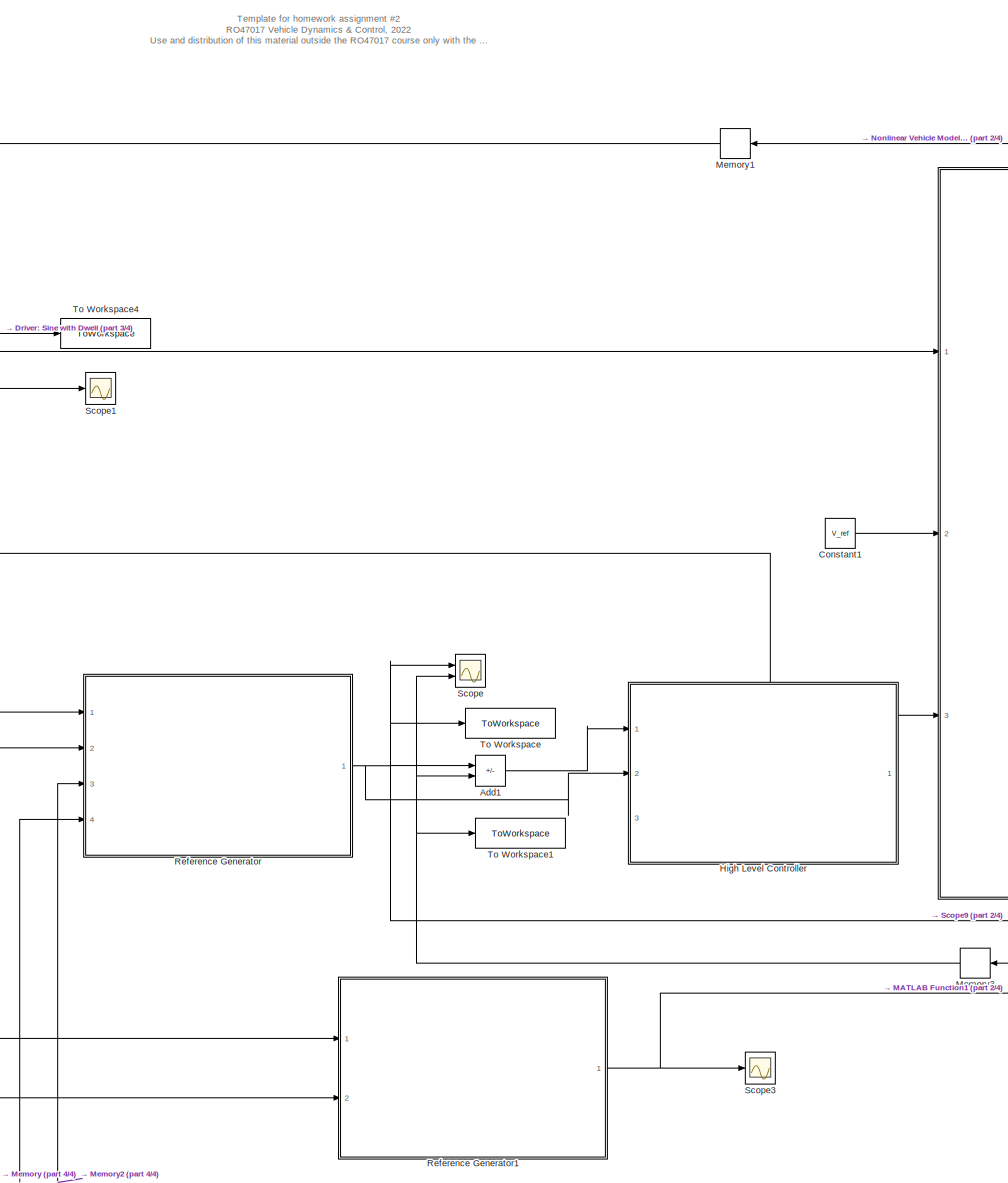
[diagram: root canvas - part 1/4, center side, full height]
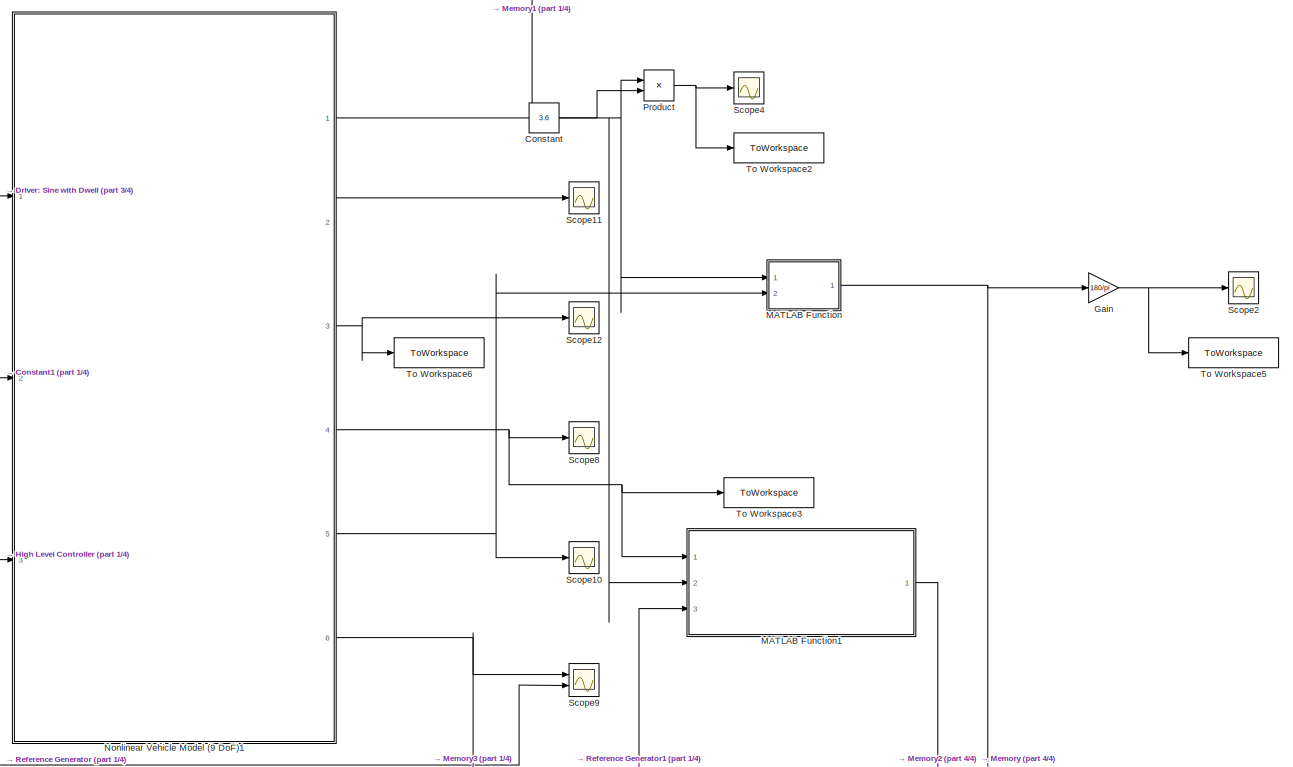
[diagram: root canvas - part 2/4, middle right region]
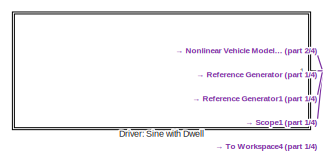
[diagram: root canvas - part 3/4, top left region]
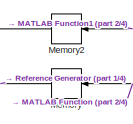
[diagram: root canvas - part 4/4, bottom center region]
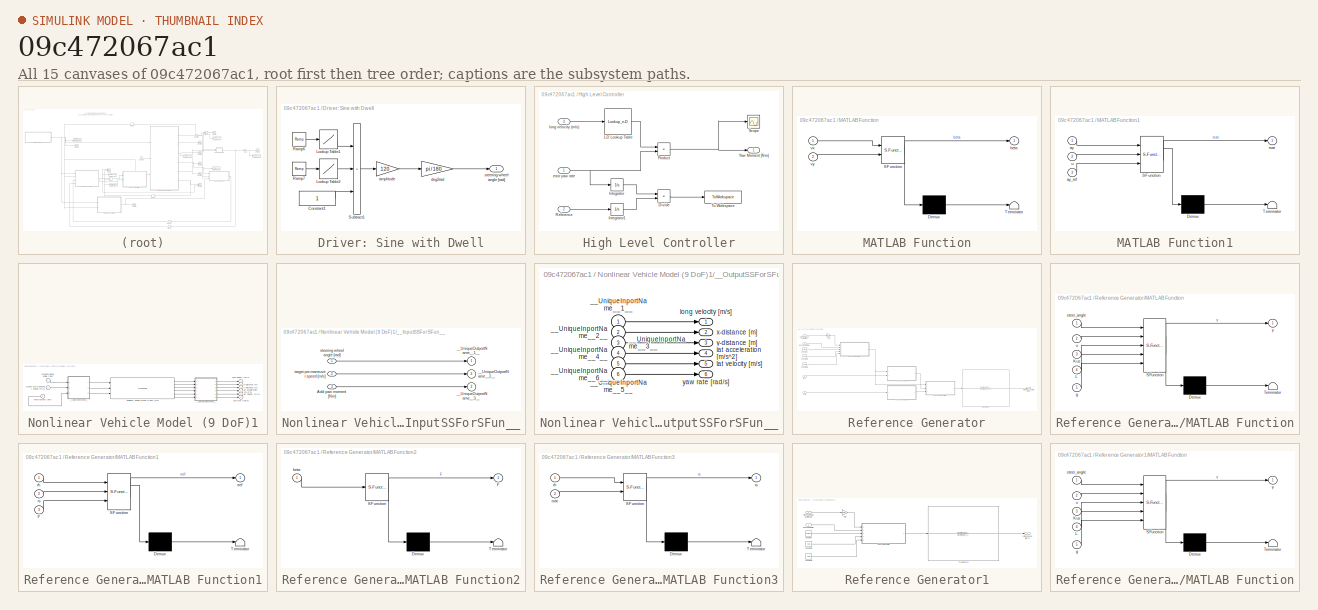
[diagram: thumbnail index - all 15 canvases of the model, root first then tree order]
MODEL slx_09c472067ac1
KIND model
CONFIG AbsTol = auto
CONFIG EnableMultiTasking = on
CONFIG FixedStep = 1e-3
CONFIG MaxStep = auto
CONFIG MinStep = auto
CONFIG RelTol = 1e-3
CONFIG SampleTimeConstraint = Unconstrained
CONFIG SolverName = ode4
CONFIG StartTime = 0.0
CONFIG StopTime = 20
BLOCK [Sum] Add1
  IconShape = rectangular
  Inputs = +-
  Ports = [2, 1]
BLOCK [Constant] Constant
  Value = 3.6
BLOCK [Constant] Constant1
  Value = V_ref
BLOCK [SubSystem] Driver: Sine with Dwell
  Ports = [0, 1]
  RequestExecContextInheritance = off
BLOCK [Constant] Driver: Sine with Dwell/Constant1
BLOCK [Lookup] Driver: Sine with Dwell/Lookup Table1
  InputValues = [0:0.1:3*pi/2 3*pi/2+eps]*0.7
  LookUpMeth = Interpolation-Use End Values
  SaturateOnIntegerOverflow = off
  Table = sin([0:0.1:3*pi/2 3*pi/2+eps])
BLOCK [Lookup] Driver: Sine with Dwell/Lookup Table2
  InputValues = [3*pi/2:0.1:2*pi 2*pi+eps]*0.7
  LookUpMeth = Interpolation-Use End Values
  SaturateOnIntegerOverflow = off
  Table = sin([3*pi/2:0.1:2*pi 2*pi+eps])
BLOCK [Reference] Driver: Sine with Dwell/Ramp6  REF=simulink/Sources/Ramp
  Ports = [0, 1]
  SourceBlock = simulink/Sources/Ramp
  SourceProductBaseCode = SL
  SourceType = Ramp
BLOCK [Reference] Driver: Sine with Dwell/Ramp7  REF=simulink/Sources/Ramp
  Ports = [0, 1]
  SourceBlock = simulink/Sources/Ramp
  SourceProductBaseCode = SL
  SourceType = Ramp
BLOCK [Sum] Driver: Sine with Dwell/Subtract1
  IconShape = rectangular
  Inputs = +++
  Ports = [3, 1]
BLOCK [Gain] Driver: Sine with Dwell/amplitude
  Gain = 120
BLOCK [Gain] Driver: Sine with Dwell/deg2rad
  Gain = pi / 180
BLOCK [Outport] Driver: Sine with Dwell/steering wheel angle [rad]
  VectorParamsAs1DForOutWhenUnconnected = off
BLOCK [Gain] Gain
  Gain = 180/pi
BLOCK [SubSystem] High Level Controller
  PortSchema = {"entries":[{"content":{"sides":[{"content":{"connectorIds":["In1","In2"]},"type":"ConnectorPlacement.EquallySpacedRectSide","uuid":"b384b34b-9bc0-4dc4-b497-a1a499aa981c"},{"content":{"connectorIds":["Out1"],"side":"RIGHT"},"type":"ConnectorPlacement.EquallySpacedRectSide","uuid":"f3fdbba3-f0c8-4c56-b5d3-57c2637e329a"},{"content":{"connectorIds":["In3"],"side":"TOP"},"type":"ConnectorPlacement.Equ...<+251ch>
  Ports = [3, 1]
  RequestExecContextInheritance = off
BLOCK [Lookup_n-D] High Level Controller/1-D Lookup Table
  BreakpointsForDimension1 = LQR_Vx_ref
  InputPortMap = u0
  InternalRulePriority = Speed
  NumberOfTableDimensions = 1
  Ports = [1, 1]
  RndMeth = Simplest
  Table = LQR_K(2,:)
BLOCK [Product] High Level Controller/Divide
  Inputs = */
  Ports = [2, 1]
BLOCK [Integrator] High Level Controller/Integrator
  Ports = [1, 1]
BLOCK [Integrator] High Level Controller/Integrator1
  Ports = [1, 1]
BLOCK [Product] High Level Controller/Product
  Ports = [2, 1]
BLOCK [Inport] High Level Controller/Reference
  Port = 2
BLOCK [Scope] High Level Controller/Scope
  Floating = off
  NumInputPorts = 1
  Ports = [1]
  ScopeSpecificationString = Simulink.scopes.TimeScopeBlockCfg('CurrentConfiguration', extmgr.ConfigurationSet(extmgr.Configuration('Core','General UI',true),extmgr.Configuration('Core','Source UI',true),extmgr.Configuration('Sources','WiredSimulink',true,'DataLoggingVariableName','ScopeData7'),extmgr.Configuration('Visuals','Time Domain',true,'SerializedDisplays',{struct('MinYLimReal','-15.12733','MaxYLimReal','13.16182','YL...<+1401ch>
BLOCK [ToWorkspace] High Level Controller/To Workspace
  FixptAsFi = on
  MaxDataPoints = inf
  Ports = [1]
  SampleTime = -1
  SaveFormat = Timeseries
  VariableName = yaw_velocity_metric_ref
BLOCK [Outport] High Level Controller/Yaw Moment [Nm]
  VectorParamsAs1DForOutWhenUnconnected = off
BLOCK [Inport] High Level Controller/error yaw rate
BLOCK [Inport] High Level Controller/long velocity (m//s)
  Port = 3
BLOCK [SubSystem] MATLAB Function
  ErrorFcn = Stateflow.Translate.translate
  PermitHierarchicalResolution = ExplicitOnly
  Ports = [2, 1]
  RequestExecContextInheritance = off
  SFBlockType = MATLAB Function
  TreatAsAtomicUnit = on
BLOCK [Demux] MATLAB Function/ Demux 
  Outputs = 1
  Ports = [1, 1]
BLOCK [S-Function] MATLAB Function/ SFunction 
  EnableBusSupport = on
  FunctionName = sf_sfun
  PortCounts = [2 2]
  Ports = [2, 2]
  SFcnIsStateOwnerBlock = off
  SFunctionDeploymentMode = off
  Tag = Stateflow S-Function 2
BLOCK [Terminator] MATLAB Function/ Terminator 
BLOCK [Outport] MATLAB Function/beta
BLOCK [Inport] MATLAB Function/vx
BLOCK [Inport] MATLAB Function/vy
  Port = 2
BLOCK [SubSystem] MATLAB Function1
  ErrorFcn = Stateflow.Translate.translate
  PermitHierarchicalResolution = ExplicitOnly
  Ports = [3, 1]
  RequestExecContextInheritance = off
  SFBlockType = MATLAB Function
  TreatAsAtomicUnit = on
BLOCK [Demux] MATLAB Function1/ Demux 
  Outputs = 1
  Ports = [1, 1]
BLOCK [S-Function] MATLAB Function1/ SFunction 
  EnableBusSupport = on
  FunctionName = sf_sfun
  PortCounts = [3 2]
  Ports = [3, 2]
  SFcnIsStateOwnerBlock = off
  SFunctionDeploymentMode = off
  Tag = Stateflow S-Function 3
BLOCK [Terminator] MATLAB Function1/ Terminator 
BLOCK [Inport] MATLAB Function1/ay
BLOCK [Inport] MATLAB Function1/ay_ref
  Port = 3
BLOCK [Outport] MATLAB Function1/rsat
BLOCK [Inport] MATLAB Function1/u
  Port = 2
BLOCK [Memory] Memory
BLOCK [Memory] Memory1
BLOCK [Memory] Memory2
BLOCK [Memory] Memory3
BLOCK [SubSystem] Nonlinear Vehicle Model (9 DoF)1
  Ports = [3, 6]
  RequestExecContextInheritance = off
BLOCK [S-Function] Nonlinear Vehicle Model (9 DoF)1/Nonlinear Vehicle Model (9 DoF)_sfcn
  CopyFcn = if ~strcmp(get_param(gcb,'Linkstatus'),'none') && ...\n~strcmp(get_param(gcb,'Linkstatus'),'implicit')      \n  set_param(gcb,'LinkStatus','none');                \nend
  EnableBusSupport = off
  FunctionName = Nonlinear_sf
  Ports = [3, 6]
  SFcnIsStateOwnerBlock = off
  SFunctionDeploymentMode = off
BLOCK [Inport] Nonlinear Vehicle Model (9 DoF)1/Yaw moment [Nm]
  Port = 3
BLOCK [SubSystem] Nonlinear Vehicle Model (9 DoF)1/__InputSSForSFun__
  PermitHierarchicalResolution = ExplicitOnly
  Ports = [3, 3]
  RequestExecContextInheritance = off
BLOCK [Inport] Nonlinear Vehicle Model (9 DoF)1/__InputSSForSFun__/Add yaw moment [Nm]
  Port = 3
BLOCK [Outport] Nonlinear Vehicle Model (9 DoF)1/__InputSSForSFun__/__UniqueOutportName__1__
BLOCK [Outport] Nonlinear Vehicle Model (9 DoF)1/__InputSSForSFun__/__UniqueOutportName__2__
  Port = 2
BLOCK [Outport] Nonlinear Vehicle Model (9 DoF)1/__InputSSForSFun__/__UniqueOutportName__3__
  Port = 3
BLOCK [Inport] Nonlinear Vehicle Model (9 DoF)1/__InputSSForSFun__/steering wheel angle [rad]
BLOCK [Inport] Nonlinear Vehicle Model (9 DoF)1/__InputSSForSFun__/target pre-maneuver speed [m//s]
  Port = 2
BLOCK [SubSystem] Nonlinear Vehicle Model (9 DoF)1/__OutputSSForSFun__
  PermitHierarchicalResolution = ExplicitOnly
  Ports = [6, 6]
  RequestExecContextInheritance = off
BLOCK [Inport] Nonlinear Vehicle Model (9 DoF)1/__OutputSSForSFun__/__UniqueInportName__1__
BLOCK [Inport] Nonlinear Vehicle Model (9 DoF)1/__OutputSSForSFun__/__UniqueInportName__2__
  Port = 2
BLOCK [Inport] Nonlinear Vehicle Model (9 DoF)1/__OutputSSForSFun__/__UniqueInportName__3__
  Port = 3
BLOCK [Inport] Nonlinear Vehicle Model (9 DoF)1/__OutputSSForSFun__/__UniqueInportName__4__
  Port = 4
BLOCK [Inport] Nonlinear Vehicle Model (9 DoF)1/__OutputSSForSFun__/__UniqueInportName__5__
  Port = 5
BLOCK [Inport] Nonlinear Vehicle Model (9 DoF)1/__OutputSSForSFun__/__UniqueInportName__6__
  Port = 6
BLOCK [Outport] Nonlinear Vehicle Model (9 DoF)1/__OutputSSForSFun__/lat acceleration [m//s^2]
  Port = 4
  VectorParamsAs1DForOutWhenUnconnected = off
BLOCK [Outport] Nonlinear Vehicle Model (9 DoF)1/__OutputSSForSFun__/lat velocity [m//s]
  Port = 5
  VectorParamsAs1DForOutWhenUnconnected = off
BLOCK [Outport] Nonlinear Vehicle Model (9 DoF)1/__OutputSSForSFun__/long velocity [m//s]
  VectorParamsAs1DForOutWhenUnconnected = off
BLOCK [Outport] Nonlinear Vehicle Model (9 DoF)1/__OutputSSForSFun__/x-distance [m]
  Port = 2
  VectorParamsAs1DForOutWhenUnconnected = off
BLOCK [Outport] Nonlinear Vehicle Model (9 DoF)1/__OutputSSForSFun__/y-distance [m]
  Port = 3
  VectorParamsAs1DForOutWhenUnconnected = off
BLOCK [Outport] Nonlinear Vehicle Model (9 DoF)1/__OutputSSForSFun__/yaw rate [rad//s]
  Port = 6
  VectorParamsAs1DForOutWhenUnconnected = off
BLOCK [Outport] Nonlinear Vehicle Model (9 DoF)1/lat acceleration [m//s^2]
  Port = 4
  VectorParamsAs1DForOutWhenUnconnected = off
BLOCK [Outport] Nonlinear Vehicle Model (9 DoF)1/lat velocity [m//s]
  Port = 5
  VectorParamsAs1DForOutWhenUnconnected = off
BLOCK [Outport] Nonlinear Vehicle Model (9 DoF)1/long velocity [m//s]
  VectorParamsAs1DForOutWhenUnconnected = off
BLOCK [Inport] Nonlinear Vehicle Model (9 DoF)1/steering wheel angle [rad]
BLOCK [Inport] Nonlinear Vehicle Model (9 DoF)1/target pre-maneuver speed [m//s]
  Port = 2
BLOCK [Outport] Nonlinear Vehicle Model (9 DoF)1/x-distance [m]
  Port = 2
  VectorParamsAs1DForOutWhenUnconnected = off
BLOCK [Outport] Nonlinear Vehicle Model (9 DoF)1/y-distance [m]
  Port = 3
  VectorParamsAs1DForOutWhenUnconnected = off
BLOCK [Outport] Nonlinear Vehicle Model (9 DoF)1/yaw rate [rad//s]
  Port = 6
  VectorParamsAs1DForOutWhenUnconnected = off
BLOCK [Product] Product
  Ports = [2, 1]
BLOCK [SubSystem] Reference Generator
  Ports = [4, 1]
  RequestExecContextInheritance = off
BLOCK [Constant] Reference Generator/Constant
  Value = par.Kus
BLOCK [Constant] Reference Generator/Constant1
  Value = par.L
BLOCK [Constant] Reference Generator/Constant2
  Value = par.g
BLOCK [Gain] Reference Generator/Gain
  Gain = 1/par.i_steer
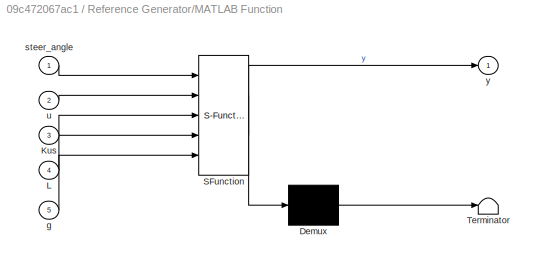
BLOCK [SubSystem] Reference Generator/MATLAB Function
  ErrorFcn = Stateflow.Translate.translate
  PermitHierarchicalResolution = ExplicitOnly
  Ports = [5, 1]
  RequestExecContextInheritance = off
  SFBlockType = MATLAB Function
  TreatAsAtomicUnit = on
BLOCK [Demux] Reference Generator/MATLAB Function/ Demux 
  Outputs = 1
  Ports = [1, 1]
BLOCK [S-Function] Reference Generator/MATLAB Function/ SFunction 
  EnableBusSupport = on
  FunctionName = sf_sfun
  PortCounts = [5 2]
  Ports = [5, 2]
  SFcnIsStateOwnerBlock = off
  SFunctionDeploymentMode = off
  Tag = Stateflow S-Function 1
BLOCK [Terminator] Reference Generator/MATLAB Function/ Terminator 
BLOCK [Inport] Reference Generator/MATLAB Function/Kus
  Port = 3
BLOCK [Inport] Reference Generator/MATLAB Function/L
  Port = 4
BLOCK [Inport] Reference Generator/MATLAB Function/g
  Port = 5
BLOCK [Inport] Reference Generator/MATLAB Function/steer_angle
BLOCK [Inport] Reference Generator/MATLAB Function/u
  Port = 2
BLOCK [Outport] Reference Generator/MATLAB Function/y
BLOCK [SubSystem] Reference Generator/MATLAB Function1
  ErrorFcn = Stateflow.Translate.translate
  PermitHierarchicalResolution = ExplicitOnly
  Ports = [3, 1]
  RequestExecContextInheritance = off
  SFBlockType = MATLAB Function
  TreatAsAtomicUnit = on
BLOCK [Demux] Reference Generator/MATLAB Function1/ Demux 
  Outputs = 1
  Ports = [1, 1]
BLOCK [S-Function] Reference Generator/MATLAB Function1/ SFunction 
  EnableBusSupport = on
  FunctionName = sf_sfun
  PortCounts = [3 2]
  Ports = [3, 2]
  SFcnIsStateOwnerBlock = off
  SFunctionDeploymentMode = off
  Tag = Stateflow S-Function 5
BLOCK [Terminator] Reference Generator/MATLAB Function1/ Terminator 
BLOCK [Inport] Reference Generator/MATLAB Function1/F
  Port = 3
BLOCK [Inport] Reference Generator/MATLAB Function1/rh
BLOCK [Outport] Reference Generator/MATLAB Function1/rref
BLOCK [Inport] Reference Generator/MATLAB Function1/rs
  Port = 2
BLOCK [SubSystem] Reference Generator/MATLAB Function2
  ErrorFcn = Stateflow.Translate.translate
  PermitHierarchicalResolution = ExplicitOnly
  Ports = [1, 1]
  RequestExecContextInheritance = off
  SFBlockType = MATLAB Function
  TreatAsAtomicUnit = on
BLOCK [Demux] Reference Generator/MATLAB Function2/ Demux 
  Outputs = 1
  Ports = [1, 1]
BLOCK [S-Function] Reference Generator/MATLAB Function2/ SFunction 
  EnableBusSupport = on
  FunctionName = sf_sfun
  PortCounts = [1 2]
  Ports = [1, 2]
  SFcnIsStateOwnerBlock = off
  SFunctionDeploymentMode = off
  Tag = Stateflow S-Function 6
BLOCK [Terminator] Reference Generator/MATLAB Function2/ Terminator 
BLOCK [Outport] Reference Generator/MATLAB Function2/F
BLOCK [Inport] Reference Generator/MATLAB Function2/beta
BLOCK [SubSystem] Reference Generator/MATLAB Function3
  ErrorFcn = Stateflow.Translate.translate
  PermitHierarchicalResolution = ExplicitOnly
  Ports = [2, 1]
  RequestExecContextInheritance = off
  SFBlockType = MATLAB Function
  TreatAsAtomicUnit = on
BLOCK [Demux] Reference Generator/MATLAB Function3/ Demux 
  Outputs = 1
  Ports = [1, 1]
BLOCK [S-Function] Reference Generator/MATLAB Function3/ SFunction 
  EnableBusSupport = on
  FunctionName = sf_sfun
  PortCounts = [2 2]
  Ports = [2, 2]
  SFcnIsStateOwnerBlock = off
  SFunctionDeploymentMode = off
  Tag = Stateflow S-Function 7
BLOCK [Terminator] Reference Generator/MATLAB Function3/ Terminator 
BLOCK [Inport] Reference Generator/MATLAB Function3/rh
BLOCK [Outport] Reference Generator/MATLAB Function3/rs
BLOCK [Inport] Reference Generator/MATLAB Function3/rsat
  Port = 2
BLOCK [TransferFcn] Reference Generator/Transfer Fcn
  Denominator = [coeff_den_s2 coeff_den_s 1]
  Numerator = [coeff_num_s 1]
BLOCK [Inport] Reference Generator/beta
  Port = 4
BLOCK [Inport] Reference Generator/long velocity [m//s]
  Port = 2
BLOCK [Outport] Reference Generator/reference yaw rate [rad//s]
  VectorParamsAs1DForOutWhenUnconnected = off
BLOCK [Inport] Reference Generator/rsat
  Port = 3
BLOCK [Inport] Reference Generator/steering wheel angle [rad]
BLOCK [SubSystem] Reference Generator1
  Ports = [2, 1]
  RequestExecContextInheritance = off
BLOCK [Constant] Reference Generator1/Constant
  Value = par.Kus
BLOCK [Constant] Reference Generator1/Constant1
  Value = par.L
BLOCK [Constant] Reference Generator1/Constant2
  Value = par.g
BLOCK [Gain] Reference Generator1/Gain
  Gain = 1/par.i_steer
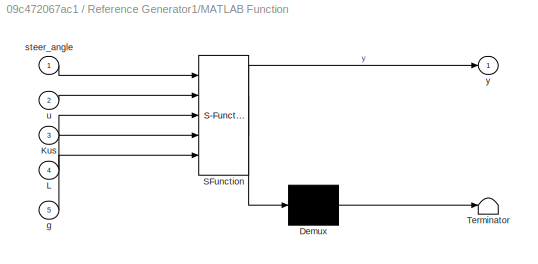
BLOCK [SubSystem] Reference Generator1/MATLAB Function
  ErrorFcn = Stateflow.Translate.translate
  PermitHierarchicalResolution = ExplicitOnly
  Ports = [5, 1]
  RequestExecContextInheritance = off
  SFBlockType = MATLAB Function
  TreatAsAtomicUnit = on
BLOCK [Demux] Reference Generator1/MATLAB Function/ Demux 
  Outputs = 1
  Ports = [1, 1]
BLOCK [S-Function] Reference Generator1/MATLAB Function/ SFunction 
  EnableBusSupport = on
  FunctionName = sf_sfun
  PortCounts = [5 2]
  Ports = [5, 2]
  SFcnIsStateOwnerBlock = off
  SFunctionDeploymentMode = off
  Tag = Stateflow S-Function 4
BLOCK [Terminator] Reference Generator1/MATLAB Function/ Terminator 
BLOCK [Inport] Reference Generator1/MATLAB Function/Kus
  Port = 3
BLOCK [Inport] Reference Generator1/MATLAB Function/L
  Port = 4
BLOCK [Inport] Reference Generator1/MATLAB Function/g
  Port = 5
BLOCK [Inport] Reference Generator1/MATLAB Function/steer_angle
BLOCK [Inport] Reference Generator1/MATLAB Function/u
  Port = 2
BLOCK [Outport] Reference Generator1/MATLAB Function/y
BLOCK [TransferFcn] Reference Generator1/Transfer Fcn
  Denominator = [acoeff_den_s2 acoeff_den_s 1]
  Numerator = [acoeff_num_s2 acoeff_num_s 1]
BLOCK [Inport] Reference Generator1/long velocity [m//s]
  Port = 2
BLOCK [Outport] Reference Generator1/reference ay [m//s^2]
  VectorParamsAs1DForOutWhenUnconnected = off
BLOCK [Inport] Reference Generator1/steering wheel angle [rad]
BLOCK [Scope] Scope
  Floating = off
  NumInputPorts = 2
  Ports = [2]
  ScopeSpecificationString = Simulink.scopes.TimeScopeBlockCfg('CurrentConfiguration', extmgr.ConfigurationSet(extmgr.Configuration('Core','General UI',true),extmgr.Configuration('Core','Source UI',true),extmgr.Configuration('Sources','WiredSimulink',true,'DataLoggingVariableName','ScopeData1'),extmgr.Configuration('Visuals','Time Domain',true,'SerializedDisplays',{struct('MinYLimReal','-1.13512','MaxYLimReal','1.23043','YLab...<+1461ch>
BLOCK [Scope] Scope1
  Floating = off
  NumInputPorts = 1
  Ports = [1]
  ScopeSpecificationString = Simulink.scopes.TimeScopeBlockCfg('CurrentConfiguration', extmgr.ConfigurationSet(extmgr.Configuration('Core','General UI',true),extmgr.Configuration('Core','Source UI',true),extmgr.Configuration('Sources','WiredSimulink',true,'DataLoggingVariableName','ScopeData1'),extmgr.Configuration('Visuals','Time Domain',true,'SerializedDisplays',{struct('MinYLimReal','-2.61787','MaxYLimReal','2.61688','YLab...<+1455ch>
BLOCK [Scope] Scope10
  Floating = off
  NumInputPorts = 1
  Ports = [1]
  ScopeSpecificationString = Simulink.scopes.TimeScopeBlockCfg('CurrentConfiguration', extmgr.ConfigurationSet(extmgr.Configuration('Core','General UI',true),extmgr.Configuration('Core','Source UI',true),extmgr.Configuration('Sources','WiredSimulink',true,'DataLoggingVariableName','ScopeData2'),extmgr.Configuration('Visuals','Time Domain',true,'SerializedDisplays',{struct('MinYLimReal','-12.74012','MaxYLimReal','15.26593','YL...<+1432ch>
BLOCK [Scope] Scope11
  Floating = off
  NumInputPorts = 1
  Ports = [1]
  ScopeSpecificationString = Simulink.scopes.TimeScopeBlockCfg('CurrentConfiguration', extmgr.ConfigurationSet(extmgr.Configuration('Core','General UI',true),extmgr.Configuration('Core','Source UI',true),extmgr.Configuration('Sources','WiredSimulink',true,'DataLoggingVariableName','ScopeData3'),extmgr.Configuration('Visuals','Time Domain',true,'SerializedDisplays',{struct('MinYLimReal','-36.5234','MaxYLimReal','328.7106','YLa...<+1426ch>
BLOCK [Scope] Scope12
  Floating = off
  NumInputPorts = 1
  Ports = [1]
  ScopeSpecificationString = Simulink.scopes.TimeScopeBlockCfg('CurrentConfiguration', extmgr.ConfigurationSet(extmgr.Configuration('Core','General UI',true),extmgr.Configuration('Core','Source UI',true),extmgr.Configuration('Sources','WiredSimulink',true,'DataLoggingVariableName','ScopeData4'),extmgr.Configuration('Visuals','Time Domain',true,'SerializedDisplays',{struct('MinYLimReal','-71.72684','MaxYLimReal','14.68617','YL...<+1476ch>
BLOCK [Scope] Scope2
  Floating = off
  NumInputPorts = 1
  Ports = [1]
  ScopeSpecificationString = Simulink.scopes.TimeScopeBlockCfg('CurrentConfiguration', extmgr.ConfigurationSet(extmgr.Configuration('Core','General UI',true),extmgr.Configuration('Core','Source UI',true),extmgr.Configuration('Sources','WiredSimulink',true,'DataLoggingVariableName','ScopeData1'),extmgr.Configuration('Visuals','Time Domain',true,'SerializedDisplays',{struct('MinYLimReal','-10.93643','MaxYLimReal','11.54398','YL...<+1442ch>
BLOCK [Scope] Scope3
  Floating = off
  NumInputPorts = 1
  Ports = [1]
  ScopeSpecificationString = Simulink.scopes.TimeScopeBlockCfg('CurrentConfiguration', extmgr.ConfigurationSet(extmgr.Configuration('Core','General UI',true),extmgr.Configuration('Core','Source UI',true),extmgr.Configuration('Sources','WiredSimulink',true,'DataLoggingVariableName','ScopeData1'),extmgr.Configuration('Visuals','Time Domain',true,'SerializedDisplays',{struct('MinYLimReal','-1.96281','MaxYLimReal','1.9633','YLabe...<+1451ch>
BLOCK [Scope] Scope4
  Floating = off
  NumInputPorts = 1
  Ports = [1]
  ScopeSpecificationString = Simulink.scopes.TimeScopeBlockCfg('CurrentConfiguration', extmgr.ConfigurationSet(extmgr.Configuration('Core','General UI',true),extmgr.Configuration('Core','Source UI',true),extmgr.Configuration('Sources','WiredSimulink',true,'DataLoggingVariableName','ScopeData5'),extmgr.Configuration('Visuals','Time Domain',true,'SerializedDisplays',{struct('MinYLimReal','43.69851','MaxYLimReal','106.3878','YLa...<+1445ch>
BLOCK [Scope] Scope8
  Floating = off
  NumInputPorts = 1
  Ports = [1]
  ScopeSpecificationString = Simulink.scopes.TimeScopeBlockCfg('CurrentConfiguration', extmgr.ConfigurationSet(extmgr.Configuration('Core','General UI',true),extmgr.Configuration('Core','Source UI',true),extmgr.Configuration('Sources','WiredSimulink',true,'DataLoggingVariableName','ScopeData6'),extmgr.Configuration('Visuals','Time Domain',true,'SerializedDisplays',{struct('MinYLimReal','-12.88235','MaxYLimReal','16.13854','YL...<+1472ch>
BLOCK [Scope] Scope9
  Floating = off
  NumInputPorts = 2
  Ports = [2]
  ScopeSpecificationString = Simulink.scopes.TimeScopeBlockCfg('CurrentConfiguration', extmgr.ConfigurationSet(extmgr.Configuration('Core','General UI',true),extmgr.Configuration('Core','Source UI',true),extmgr.Configuration('Sources','WiredSimulink',true),extmgr.Configuration('Visuals','Time Domain',true,'SerializedDisplays',{struct('MinYLimReal','-1.15901','MaxYLimReal','1.22613','YLabelReal','','MinYLimMag','0.00000','MaxY...<+1434ch>
BLOCK [ToWorkspace] To Workspace
  FixptAsFi = on
  MaxDataPoints = inf
  Ports = [1]
  SampleTime = -1
  SaveFormat = Timeseries
  VariableName = ref_yaw_ref
BLOCK [ToWorkspace] To Workspace1
  FixptAsFi = on
  MaxDataPoints = inf
  Ports = [1]
  SampleTime = -1
  SaveFormat = Timeseries
  VariableName = yaw_ref
BLOCK [ToWorkspace] To Workspace2
  FixptAsFi = on
  MaxDataPoints = inf
  Ports = [1]
  SampleTime = -1
  SaveFormat = Timeseries
  VariableName = long_vel
BLOCK [ToWorkspace] To Workspace3
  FixptAsFi = on
  MaxDataPoints = inf
  Ports = [1]
  SampleTime = -1
  SaveFormat = Timeseries
  VariableName = lat_acc_ref
BLOCK [ToWorkspace] To Workspace4
  FixptAsFi = on
  MaxDataPoints = inf
  Ports = [1]
  SampleTime = -1
  SaveFormat = Timeseries
  VariableName = steer_angle
BLOCK [ToWorkspace] To Workspace5
  FixptAsFi = on
  MaxDataPoints = inf
  Ports = [1]
  SampleTime = -1
  SaveFormat = Timeseries
  VariableName = beta_ref
BLOCK [ToWorkspace] To Workspace6
  FixptAsFi = on
  MaxDataPoints = inf
  Ports = [1]
  SampleTime = -1
  SaveFormat = Timeseries
  VariableName = ydist_ref
ANNOTATION (root): Template for homework assignment #2 RO47017 Vehicle Dynamics & Control, 2022 Use and distribution of this material outside the RO47017 course only with the permission of the course coordinator
LINE Add1:1 -> High Level Controller:1
LINE Constant1:1 -> Nonlinear Vehicle Model (9 DoF)1:2
LINE Constant:1 -> Product:2
LINE Driver: Sine with Dwell/Constant1:1 -> Driver: Sine with Dwell/Subtract1:3
LINE Driver: Sine with Dwell/Lookup Table1:1 -> Driver: Sine with Dwell/Subtract1:1
LINE Driver: Sine with Dwell/Lookup Table2:1 -> Driver: Sine with Dwell/Subtract1:2
LINE Driver: Sine with Dwell/Ramp6:1 -> Driver: Sine with Dwell/Lookup Table1:1
LINE Driver: Sine with Dwell/Ramp7:1 -> Driver: Sine with Dwell/Lookup Table2:1
LINE Driver: Sine with Dwell/Subtract1:1 -> Driver: Sine with Dwell/amplitude:1
LINE Driver: Sine with Dwell/amplitude:1 -> Driver: Sine with Dwell/deg2rad:1
LINE Driver: Sine with Dwell/deg2rad:1 -> Driver: Sine with Dwell/steering wheel angle [rad]:1
NET Driver: Sine with Dwell:1 -> Nonlinear Vehicle Model (9 DoF)1:1, Reference Generator1:1, Reference Generator:1, Scope1:1, To Workspace4:1
NET Gain:1 -> Scope2:1, To Workspace5:1
LINE High Level Controller/1-D Lookup Table:1 -> High Level Controller/Product:1
LINE High Level Controller/Divide:1 -> High Level Controller/To Workspace:1
LINE High Level Controller/Integrator1:1 -> High Level Controller/Divide:2
LINE High Level Controller/Integrator:1 -> High Level Controller/Divide:1
NET High Level Controller/Product:1 -> High Level Controller/Scope:1, High Level Controller/Yaw Moment [Nm]:1
LINE High Level Controller/Reference:1 -> High Level Controller/Integrator1:1
NET High Level Controller/error yaw rate:1 -> High Level Controller/Integrator:1, High Level Controller/Product:2
LINE High Level Controller/long velocity (m//s):1 -> High Level Controller/1-D Lookup Table:1
LINE High Level Controller:1 -> Nonlinear Vehicle Model (9 DoF)1:3
LINE MATLAB Function1:1 -> Memory2:1
NET MATLAB Function:1 -> Gain:1, Memory:1
NET Memory1:1 -> High Level Controller:3, Reference Generator1:2, Reference Generator:2
LINE Memory2:1 -> Reference Generator:3
NET Memory3:1 -> Add1:2, Scope:2, To Workspace1:1
LINE Memory:1 -> Reference Generator:4
LINE Nonlinear Vehicle Model (9 DoF)1/Nonlinear Vehicle Model (9 DoF)_sfcn:1 -> Nonlinear Vehicle Model (9 DoF)1/__OutputSSForSFun__:1
LINE Nonlinear Vehicle Model (9 DoF)1/Nonlinear Vehicle Model (9 DoF)_sfcn:2 -> Nonlinear Vehicle Model (9 DoF)1/__OutputSSForSFun__:2
LINE Nonlinear Vehicle Model (9 DoF)1/Nonlinear Vehicle Model (9 DoF)_sfcn:3 -> Nonlinear Vehicle Model (9 DoF)1/__OutputSSForSFun__:3
LINE Nonlinear Vehicle Model (9 DoF)1/Nonlinear Vehicle Model (9 DoF)_sfcn:4 -> Nonlinear Vehicle Model (9 DoF)1/__OutputSSForSFun__:4
LINE Nonlinear Vehicle Model (9 DoF)1/Nonlinear Vehicle Model (9 DoF)_sfcn:5 -> Nonlinear Vehicle Model (9 DoF)1/__OutputSSForSFun__:5
LINE Nonlinear Vehicle Model (9 DoF)1/Nonlinear Vehicle Model (9 DoF)_sfcn:6 -> Nonlinear Vehicle Model (9 DoF)1/__OutputSSForSFun__:6
LINE Nonlinear Vehicle Model (9 DoF)1/Yaw moment [Nm]:1 -> Nonlinear Vehicle Model (9 DoF)1/__InputSSForSFun__:3
LINE Nonlinear Vehicle Model (9 DoF)1/__InputSSForSFun__/Add yaw moment [Nm]:1 -> Nonlinear Vehicle Model (9 DoF)1/__InputSSForSFun__/__UniqueOutportName__3__:1
LINE Nonlinear Vehicle Model (9 DoF)1/__InputSSForSFun__/steering wheel angle [rad]:1 -> Nonlinear Vehicle Model (9 DoF)1/__InputSSForSFun__/__UniqueOutportName__1__:1
LINE Nonlinear Vehicle Model (9 DoF)1/__InputSSForSFun__/target pre-maneuver speed [m//s]:1 -> Nonlinear Vehicle Model (9 DoF)1/__InputSSForSFun__/__UniqueOutportName__2__:1
LINE Nonlinear Vehicle Model (9 DoF)1/__InputSSForSFun__:1 -> Nonlinear Vehicle Model (9 DoF)1/Nonlinear Vehicle Model (9 DoF)_sfcn:1
LINE Nonlinear Vehicle Model (9 DoF)1/__InputSSForSFun__:2 -> Nonlinear Vehicle Model (9 DoF)1/Nonlinear Vehicle Model (9 DoF)_sfcn:2
LINE Nonlinear Vehicle Model (9 DoF)1/__InputSSForSFun__:3 -> Nonlinear Vehicle Model (9 DoF)1/Nonlinear Vehicle Model (9 DoF)_sfcn:3
LINE Nonlinear Vehicle Model (9 DoF)1/__OutputSSForSFun__/__UniqueInportName__1__:1 -> Nonlinear Vehicle Model (9 DoF)1/__OutputSSForSFun__/long velocity [m//s]:1
LINE Nonlinear Vehicle Model (9 DoF)1/__OutputSSForSFun__/__UniqueInportName__2__:1 -> Nonlinear Vehicle Model (9 DoF)1/__OutputSSForSFun__/x-distance [m]:1
LINE Nonlinear Vehicle Model (9 DoF)1/__OutputSSForSFun__/__UniqueInportName__3__:1 -> Nonlinear Vehicle Model (9 DoF)1/__OutputSSForSFun__/y-distance [m]:1
LINE Nonlinear Vehicle Model (9 DoF)1/__OutputSSForSFun__/__UniqueInportName__4__:1 -> Nonlinear Vehicle Model (9 DoF)1/__OutputSSForSFun__/lat acceleration [m//s^2]:1
LINE Nonlinear Vehicle Model (9 DoF)1/__OutputSSForSFun__/__UniqueInportName__5__:1 -> Nonlinear Vehicle Model (9 DoF)1/__OutputSSForSFun__/lat velocity [m//s]:1
LINE Nonlinear Vehicle Model (9 DoF)1/__OutputSSForSFun__/__UniqueInportName__6__:1 -> Nonlinear Vehicle Model (9 DoF)1/__OutputSSForSFun__/yaw rate [rad//s]:1
LINE Nonlinear Vehicle Model (9 DoF)1/__OutputSSForSFun__:1 -> Nonlinear Vehicle Model (9 DoF)1/long velocity [m//s]:1
LINE Nonlinear Vehicle Model (9 DoF)1/__OutputSSForSFun__:2 -> Nonlinear Vehicle Model (9 DoF)1/x-distance [m]:1
LINE Nonlinear Vehicle Model (9 DoF)1/__OutputSSForSFun__:3 -> Nonlinear Vehicle Model (9 DoF)1/y-distance [m]:1
LINE Nonlinear Vehicle Model (9 DoF)1/__OutputSSForSFun__:4 -> Nonlinear Vehicle Model (9 DoF)1/lat acceleration [m//s^2]:1
LINE Nonlinear Vehicle Model (9 DoF)1/__OutputSSForSFun__:5 -> Nonlinear Vehicle Model (9 DoF)1/lat velocity [m//s]:1
LINE Nonlinear Vehicle Model (9 DoF)1/__OutputSSForSFun__:6 -> Nonlinear Vehicle Model (9 DoF)1/yaw rate [rad//s]:1
LINE Nonlinear Vehicle Model (9 DoF)1/steering wheel angle [rad]:1 -> Nonlinear Vehicle Model (9 DoF)1/__InputSSForSFun__:1
LINE Nonlinear Vehicle Model (9 DoF)1/target pre-maneuver speed [m//s]:1 -> Nonlinear Vehicle Model (9 DoF)1/__InputSSForSFun__:2
NET Nonlinear Vehicle Model (9 DoF)1:1 -> MATLAB Function1:2, MATLAB Function:1, Memory1:1, Product:1
LINE Nonlinear Vehicle Model (9 DoF)1:2 -> Scope11:1
NET Nonlinear Vehicle Model (9 DoF)1:3 -> Scope12:1, To Workspace6:1
NET Nonlinear Vehicle Model (9 DoF)1:4 -> MATLAB Function1:1, Scope8:1, To Workspace3:1
NET Nonlinear Vehicle Model (9 DoF)1:5 -> MATLAB Function:2, Scope10:1
NET Nonlinear Vehicle Model (9 DoF)1:6 -> Memory3:1, Scope9:1
NET Product:1 -> Scope4:1, To Workspace2:1
LINE Reference Generator/Constant1:1 -> Reference Generator/MATLAB Function:4
LINE Reference Generator/Constant2:1 -> Reference Generator/MATLAB Function:5
LINE Reference Generator/Constant:1 -> Reference Generator/MATLAB Function:3
LINE Reference Generator/Gain:1 -> Reference Generator/MATLAB Function:1
LINE Reference Generator/MATLAB Function1:1 -> Reference Generator/Transfer Fcn:1
LINE Reference Generator/MATLAB Function2:1 -> Reference Generator/MATLAB Function1:3
LINE Reference Generator/MATLAB Function3:1 -> Reference Generator/MATLAB Function1:2
NET Reference Generator/MATLAB Function:1 -> Reference Generator/MATLAB Function1:1, Reference Generator/MATLAB Function3:1
LINE Reference Generator/Transfer Fcn:1 -> Reference Generator/reference yaw rate [rad//s]:1
LINE Reference Generator/beta:1 -> Reference Generator/MATLAB Function2:1
LINE Reference Generator/long velocity [m//s]:1 -> Reference Generator/MATLAB Function:2
LINE Reference Generator/rsat:1 -> Reference Generator/MATLAB Function3:2
LINE Reference Generator/steering wheel angle [rad]:1 -> Reference Generator/Gain:1
LINE Reference Generator1/Constant1:1 -> Reference Generator1/MATLAB Function:4
LINE Reference Generator1/Constant2:1 -> Reference Generator1/MATLAB Function:5
LINE Reference Generator1/Constant:1 -> Reference Generator1/MATLAB Function:3
LINE Reference Generator1/Gain:1 -> Reference Generator1/MATLAB Function:1
LINE Reference Generator1/MATLAB Function:1 -> Reference Generator1/Transfer Fcn:1
LINE Reference Generator1/Transfer Fcn:1 -> Reference Generator1/reference ay [m//s^2]:1
LINE Reference Generator1/long velocity [m//s]:1 -> Reference Generator1/MATLAB Function:2
LINE Reference Generator1/steering wheel angle [rad]:1 -> Reference Generator1/Gain:1
NET Reference Generator1:1 -> MATLAB Function1:3, Scope3:1
NET Reference Generator:1 -> Add1:1, High Level Controller:2, Scope9:2, Scope:1, To Workspace:1
note: NET lines group one-source signal fan-out (src -> all destinations, sorted); 1:1 wires keep LINE
CHART Reference Generator/MATLAB Function states=1 transitions=1
  STATE_LABEL 'eML_blk_kernel()'
  STATE_LABEL 'SCRIPT:\nfunction y = fcn(steer_angle, u, Kus, L, g)\n    y = ( u / (L + ((Kus * u * u) / g ))) * steer_angle;\nend \n'
CHART MATLAB Function states=1 transitions=1
  STATE_LABEL 'eML_blk_kernel()'
  STATE_LABEL 'SCRIPT:\nfunction beta = sideslip(vx,vy)\n\nbeta = atan(vy/vx);\n\nend\n'
CHART MATLAB Function1 states=1 transitions=1
  STATE_LABEL 'eML_blk_kernel()'
  STATE_LABEL 'SCRIPT:\nfunction rsat = yawsat(ay,u,ay_ref)\n    rsat = (ay - sign(ay)*(ay-ay_ref))/u;\nend \n'
CHART Reference Generator1/MATLAB Function states=1 transitions=1
  STATE_LABEL 'eML_blk_kernel()'
  STATE_LABEL 'SCRIPT:\nfunction y = fcn(steer_angle, u, Kus, L, g)\n    y =  (u*u / (g*L + (Kus * u * u))) * steer_angle;\nend \n'
CHART Reference Generator/MATLAB Function1 states=1 transitions=1
  STATE_LABEL 'eML_blk_kernel()'
  STATE_LABEL 'SCRIPT:\nfunction rref = refyaw(rh,rs,F)\n        rref = rh - F*(rh-rs);\nend \n'
CHART Reference Generator/MATLAB Function2 states=1 transitions=1
  STATE_LABEL 'eML_blk_kernel()'
  STATE_LABEL 'SCRIPT:\nfunction F = Fref(beta)\n    \tif(abs(beta)<0.02)    \n            F = 0;\n        elseif(abs(beta)>=0.02&abs(beta)<=0.05)\n            F = 0.85*(abs(beta)-0.02)/(0.03);\n        else\n            F = 1;\n        end\nend \n'
CHART Reference Generator/MATLAB Function3 states=1 transitions=1
  STATE_LABEL 'eML_blk_kernel()'
  STATE_LABEL 'SCRIPT:\nfunction rs = yaws(rh,rsat)\n    \tif(abs(rh)<abs(rsat))    \n            rs = rh;\n        else\n            rs = abs(rsat)*sign(rh);\n        end\nend \n'
CHART  states=0 transitions=0
CHART  states=0 transitions=0
CHART  states=0 transitions=0
CHART  states=0 transitions=0
CHART  states=0 transitions=0
CHART  states=0 transitions=0
CHART  states=0 transitions=0
